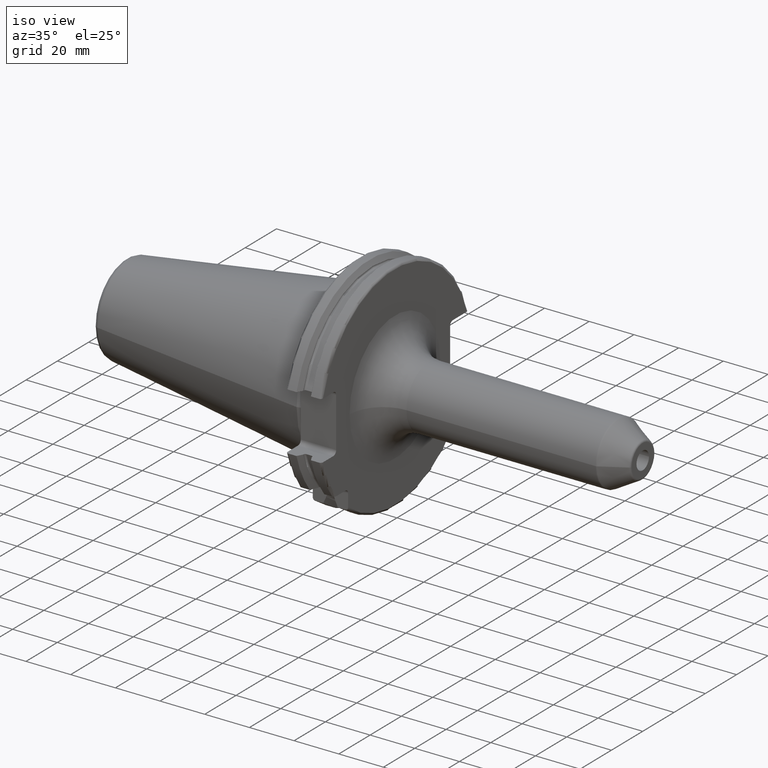
[diagram: clean part render]
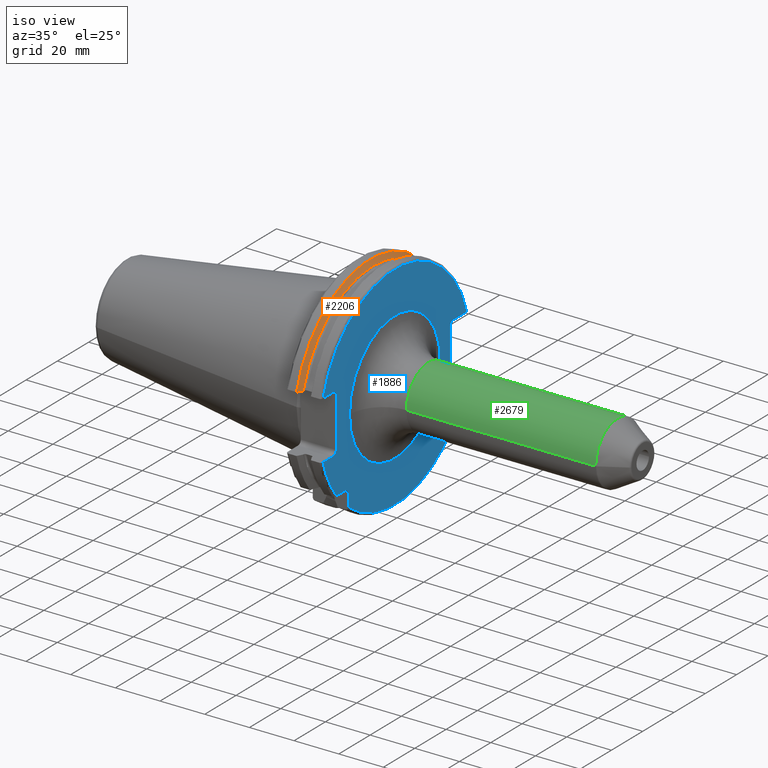
[diagram: same view with three faces highlighted in distinct colors, each labeled with its STEP entity id]
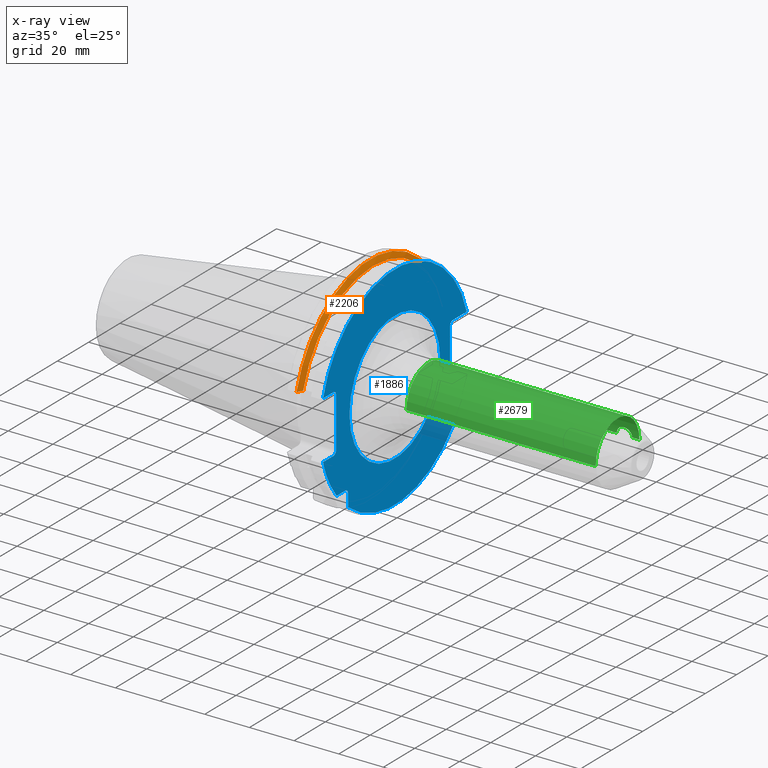
[diagram: x-ray of the same camera — body ghosted, the three highlighted faces saturated]
A machine part, iso view with three faces highlighted in distinct colors.
The next image is the same camera in x-ray (body ghosted, the three faces saturated) — at least one of them is partly hidden behind the body in this view.
Their STEP definitions:

[orange] entity #2206 — the highlighted conical surface has half-angle 60 deg.
#398=CARTESIAN_POINT('',(7.934621614173E0,0.E0,0.E0));
#399=DIRECTION('',(1.E0,0.E0,0.E0));
#400=DIRECTION('',(0.E0,9.643354064066E-1,2.646832521159E-1));
#401=AXIS2_PLACEMENT_3D('',#398,#399,#400);
#425=CARTESIAN_POINT('',(7.934621614173E0,4.699929686974E1,1.29E1));
#426=CARTESIAN_POINT('',(8.085480915039E0,4.672833723043E1,1.29E1));
#427=CARTESIAN_POINT('',(8.384988643814E0,4.619006057422E1,1.29E1));
#428=CARTESIAN_POINT('',(8.827579780447E0,4.539363402665E1,1.29E1));
#429=CARTESIAN_POINT('',(9.118260754177E0,4.486988275438E1,1.29E1));
#430=CARTESIAN_POINT('',(9.2625E0,4.460981716077E1,1.29E1));
#432=CARTESIAN_POINT('',(9.2625E0,-4.460981716077E1,1.29E1));
#433=CARTESIAN_POINT('',(9.118283773553E0,-4.486984125009E1,1.29E1));
#434=CARTESIAN_POINT('',(8.827633549554E0,-4.539353719098E1,1.29E1));
#435=CARTESIAN_POINT('',(8.385043355543E0,-4.618996220278E1,1.29E1));
#436=CARTESIAN_POINT('',(8.085504386120E0,-4.672829507383E1,1.29E1));
#437=CARTESIAN_POINT('',(7.934621614173E0,-4.699929686974E1,1.29E1));
#447=CARTESIAN_POINT('',(9.2625E0,0.E0,0.E0));
#448=DIRECTION('',(1.E0,0.E0,0.E0));
#449=DIRECTION('',(0.E0,9.606411165078E-1,2.777924499957E-1));
#450=AXIS2_PLACEMENT_3D('',#447,#448,#449);
#1460=CARTESIAN_POINT('',(9.2625E0,4.460981716077E1,1.29E1));
#1462=VERTEX_POINT('',#1460);
#1472=CARTESIAN_POINT('',(9.2625E0,-4.460981716077E1,1.29E1));
#1474=VERTEX_POINT('',#1472);
#1498=VERTEX_POINT('',#425);
#1499=VERTEX_POINT('',#437);
#2194=CARTESIAN_POINT('',(8.598560807087E0,0.E0,0.E0));
#2195=DIRECTION('',(-1.E0,0.E0,0.E0));
#2196=DIRECTION('',(0.E0,1.E0,0.E0));
#2197=AXIS2_PLACEMENT_3D('',#2194,#2195,#2196);
#2198=CONICAL_SURFACE('',#2197,4.758752358474E1,6.E1);
#2199=ORIENTED_EDGE('',*,*,#2146,.T.);
#2201=ORIENTED_EDGE('',*,*,#2200,.T.);
#2202=ORIENTED_EDGE('',*,*,#2075,.T.);
#2203=ORIENTED_EDGE('',*,*,#2174,.F.);
#2204=EDGE_LOOP('',(#2199,#2201,#2202,#2203));
#2205=FACE_OUTER_BOUND('',#2204,.F.);
#2206=ADVANCED_FACE('',(#2205),#2198,.T.);
#402=CIRCLE('',#401,4.87375E1);
#431=B_SPLINE_CURVE_WITH_KNOTS('',3,(#425,#426,#427,#428,#429,#430),
.UNSPECIFIED.,.F.,.F.,(4,1,1,4),(0.E0,3.333333333333E-1,6.666666666667E-1,1.E0),
.UNSPECIFIED.);
#438=B_SPLINE_CURVE_WITH_KNOTS('',3,(#432,#433,#434,#435,#436,#437),
.UNSPECIFIED.,.F.,.F.,(4,1,1,4),(0.E0,3.333333333333E-1,6.666666666667E-1,1.E0),
.UNSPECIFIED.);
#451=CIRCLE('',#450,4.643754716948E1);
#2075=EDGE_CURVE('',#1474,#1499,#438,.T.);
#2146=EDGE_CURVE('',#1498,#1462,#431,.T.);
#2174=EDGE_CURVE('',#1498,#1499,#402,.T.);
#2200=EDGE_CURVE('',#1462,#1474,#451,.T.);

[blue] entity #1886 — the highlighted planar face has unit normal (1, 0, 0).
#130=CARTESIAN_POINT('',(1.905E1,3.705E1,1.115E1));
#131=DIRECTION('',(-1.E0,0.E0,0.E0));
#132=DIRECTION('',(0.E0,-1.E0,0.E0));
#133=AXIS2_PLACEMENT_3D('',#130,#131,#132);
#140=DIRECTION('',(0.E0,0.E0,1.E0));
#141=VECTOR('',#140,2.23E1);
#142=CARTESIAN_POINT('',(1.905E1,-3.75E1,-1.115E1));
#143=LINE('',#142,#141);
#144=DIRECTION('',(0.E0,1.E0,0.E0));
#145=VECTOR('',#144,6.711493733886E0);
#146=CARTESIAN_POINT('',(1.905E1,-4.596149373389E1,1.29E1));
#147=LINE('',#146,#145);
#148=DIRECTION('',(0.E0,-1.E0,0.E0));
#149=VECTOR('',#148,8.911493733886E0);
#150=CARTESIAN_POINT('',(1.905E1,4.596149373389E1,1.29E1));
#151=LINE('',#150,#149);
#152=DIRECTION('',(0.E0,0.E0,-1.E0));
#153=VECTOR('',#152,2.23E1);
#154=CARTESIAN_POINT('',(1.905E1,3.53E1,1.115E1));
#155=LINE('',#154,#153);
#156=DIRECTION('',(0.E0,-1.E0,0.E0));
#157=VECTOR('',#156,8.911493733886E0);
#158=CARTESIAN_POINT('',(1.905E1,4.596149373389E1,-1.29E1));
#159=LINE('',#158,#157);
#160=DIRECTION('',(0.E0,0.E0,1.E0));
#161=VECTOR('',#160,5.653810627237E0);
#162=CARTESIAN_POINT('',(1.905E1,-2.985E1,-3.725381062724E1));
#163=LINE('',#162,#161);
#164=DIRECTION('',(0.E0,-1.E0,0.E0));
#165=VECTOR('',#164,5.653810627237E0);
#166=CARTESIAN_POINT('',(1.905E1,-3.16E1,-2.985E1));
#167=LINE('',#166,#165);
#168=DIRECTION('',(0.E0,1.E0,0.E0));
#169=VECTOR('',#168,6.711493733886E0);
#170=CARTESIAN_POINT('',(1.905E1,-4.596149373389E1,-1.29E1));
#171=LINE('',#170,#169);
#172=CARTESIAN_POINT('',(1.905E1,0.E0,0.E0));
#173=DIRECTION('',(1.E0,0.E0,0.E0));
#174=DIRECTION('',(0.E0,-1.E0,0.E0));
#175=AXIS2_PLACEMENT_3D('',#172,#173,#174);
#177=CARTESIAN_POINT('',(1.905E1,0.E0,0.E0));
#178=DIRECTION('',(1.E0,0.E0,0.E0));
#179=DIRECTION('',(0.E0,1.E0,0.E0));
#180=AXIS2_PLACEMENT_3D('',#177,#178,#179);
#190=CARTESIAN_POINT('',(1.905E1,-3.925E1,-1.115E1));
#191=DIRECTION('',(-1.E0,0.E0,0.E0));
#192=DIRECTION('',(0.E0,1.E0,0.E0));
#193=AXIS2_PLACEMENT_3D('',#190,#191,#192);
#213=CARTESIAN_POINT('',(1.905E1,4.596149373389E1,-1.29E1));
#225=CARTESIAN_POINT('',(1.905E1,0.E0,0.E0));
#226=DIRECTION('',(-1.E0,0.E0,0.E0));
#227=DIRECTION('',(0.E0,9.627964123359E-1,-2.702278083268E-1));
#228=AXIS2_PLACEMENT_3D('',#225,#226,#227);
#230=CARTESIAN_POINT('',(1.905E1,-4.596149373389E1,-1.29E1));
#241=CARTESIAN_POINT('',(1.905E1,0.E0,0.E0));
#242=DIRECTION('',(-1.E0,0.E0,0.E0));
#243=DIRECTION('',(0.E0,-7.803888060170E-1,-6.252945797329E-1));
#244=AXIS2_PLACEMENT_3D('',#241,#242,#243);
#255=CARTESIAN_POINT('',(1.905E1,-3.725381062724E1,-2.985E1));
#261=CARTESIAN_POINT('',(1.905E1,3.705E1,-1.115E1));
#262=DIRECTION('',(-1.E0,0.E0,0.E0));
#263=DIRECTION('',(0.E0,0.E0,-1.E0));
#264=AXIS2_PLACEMENT_3D('',#261,#262,#263);
#326=CARTESIAN_POINT('',(1.905E1,-3.925E1,1.115E1));
#327=DIRECTION('',(-1.E0,0.E0,0.E0));
#328=DIRECTION('',(0.E0,0.E0,1.E0));
#329=AXIS2_PLACEMENT_3D('',#326,#327,#328);
#367=CARTESIAN_POINT('',(1.905E1,4.596149373389E1,1.29E1));
#378=CARTESIAN_POINT('',(1.905E1,0.E0,0.E0));
#379=DIRECTION('',(1.E0,0.E0,0.E0));
#380=DIRECTION('',(0.E0,9.627964123359E-1,2.702278083268E-1));
#381=AXIS2_PLACEMENT_3D('',#378,#379,#380);
#392=CARTESIAN_POINT('',(1.905E1,-4.596149373389E1,1.29E1));
#741=CARTESIAN_POINT('',(1.905E1,-3.16E1,-3.16E1));
#742=DIRECTION('',(-1.E0,0.E0,0.E0));
#743=DIRECTION('',(0.E0,0.E0,1.E0));
#744=AXIS2_PLACEMENT_3D('',#741,#742,#743);
#1529=VERTEX_POINT('',#367);
#1530=VERTEX_POINT('',#392);
#1533=VERTEX_POINT('',#213);
#1534=VERTEX_POINT('',#230);
#1553=CARTESIAN_POINT('',(1.905E1,-2.985E1,-3.725381062724E1));
#1554=VERTEX_POINT('',#1553);
#1561=CARTESIAN_POINT('',(1.905E1,-3.75E1,-1.115E1));
#1563=VERTEX_POINT('',#1561);
#1565=CARTESIAN_POINT('',(1.905E1,-3.925E1,-1.29E1));
#1567=VERTEX_POINT('',#1565);
#1569=CARTESIAN_POINT('',(1.905E1,-3.925E1,1.29E1));
#1571=VERTEX_POINT('',#1569);
#1573=CARTESIAN_POINT('',(1.905E1,-3.75E1,1.115E1));
#1575=VERTEX_POINT('',#1573);
#1577=CARTESIAN_POINT('',(1.905E1,3.53E1,1.115E1));
#1579=VERTEX_POINT('',#1577);
#1581=CARTESIAN_POINT('',(1.905E1,3.705E1,1.29E1));
#1583=VERTEX_POINT('',#1581);
#1585=CARTESIAN_POINT('',(1.905E1,3.705E1,-1.29E1));
#1587=VERTEX_POINT('',#1585);
#1589=CARTESIAN_POINT('',(1.905E1,3.53E1,-1.115E1));
#1591=VERTEX_POINT('',#1589);
#1593=CARTESIAN_POINT('',(1.905E1,-3.16E1,-2.985E1));
#1594=CARTESIAN_POINT('',(1.905E1,-2.985E1,-3.16E1));
#1595=VERTEX_POINT('',#1593);
#1596=VERTEX_POINT('',#1594);
#1617=CARTESIAN_POINT('',(1.905E1,-2.9E1,0.E0));
#1618=CARTESIAN_POINT('',(1.905E1,2.9E1,0.E0));
#1619=VERTEX_POINT('',#1617);
#1620=VERTEX_POINT('',#1618);
#1658=VERTEX_POINT('',#255);
#1843=CARTESIAN_POINT('',(1.905E1,0.E0,0.E0));
#1844=DIRECTION('',(1.E0,0.E0,0.E0));
#1845=DIRECTION('',(0.E0,-1.E0,0.E0));
#1846=AXIS2_PLACEMENT_3D('',#1843,#1844,#1845);
#1847=PLANE('',#1846);
#1849=ORIENTED_EDGE('',*,*,#1848,.T.);
#1851=ORIENTED_EDGE('',*,*,#1850,.F.);
#1853=ORIENTED_EDGE('',*,*,#1852,.F.);
#1855=ORIENTED_EDGE('',*,*,#1854,.F.);
#1857=ORIENTED_EDGE('',*,*,#1856,.T.);
#1858=ORIENTED_EDGE('',*,*,#1834,.F.);
#1859=ORIENTED_EDGE('',*,*,#1823,.T.);
#1861=ORIENTED_EDGE('',*,*,#1860,.F.);
#1863=ORIENTED_EDGE('',*,*,#1862,.F.);
#1865=ORIENTED_EDGE('',*,*,#1864,.T.);
#1867=ORIENTED_EDGE('',*,*,#1866,.T.);
#1869=ORIENTED_EDGE('',*,*,#1868,.F.);
#1871=ORIENTED_EDGE('',*,*,#1870,.T.);
#1873=ORIENTED_EDGE('',*,*,#1872,.T.);
#1875=ORIENTED_EDGE('',*,*,#1874,.T.);
#1877=ORIENTED_EDGE('',*,*,#1876,.F.);
#1878=EDGE_LOOP('',(#1849,#1851,#1853,#1855,#1857,#1858,#1859,#1861,#1863,#1865,
#1867,#1869,#1871,#1873,#1875,#1877));
#1879=FACE_OUTER_BOUND('',#1878,.F.);
#1881=ORIENTED_EDGE('',*,*,#1880,.T.);
#1883=ORIENTED_EDGE('',*,*,#1882,.T.);
#1884=EDGE_LOOP('',(#1881,#1883));
#1885=FACE_BOUND('',#1884,.F.);
#1886=ADVANCED_FACE('',(#1879,#1885),#1847,.T.);
#134=CIRCLE('',#133,1.75E0);
#176=CIRCLE('',#175,2.9E1);
#181=CIRCLE('',#180,2.9E1);
#194=CIRCLE('',#193,1.75E0);
#229=CIRCLE('',#228,4.77375E1);
#245=CIRCLE('',#244,4.77375E1);
#265=CIRCLE('',#264,1.75E0);
#330=CIRCLE('',#329,1.75E0);
#382=CIRCLE('',#381,4.77375E1);
#745=CIRCLE('',#744,1.75E0);
#1823=EDGE_CURVE('',#1579,#1591,#155,.T.);
#1834=EDGE_CURVE('',#1579,#1583,#134,.T.);
#1848=EDGE_CURVE('',#1563,#1575,#143,.T.);
#1850=EDGE_CURVE('',#1571,#1575,#330,.T.);
#1852=EDGE_CURVE('',#1530,#1571,#147,.T.);
#1854=EDGE_CURVE('',#1529,#1530,#382,.T.);
#1856=EDGE_CURVE('',#1529,#1583,#151,.T.);
#1860=EDGE_CURVE('',#1587,#1591,#265,.T.);
#1862=EDGE_CURVE('',#1533,#1587,#159,.T.);
#1864=EDGE_CURVE('',#1533,#1554,#229,.T.);
#1866=EDGE_CURVE('',#1554,#1596,#163,.T.);
#1868=EDGE_CURVE('',#1595,#1596,#745,.T.);
#1870=EDGE_CURVE('',#1595,#1658,#167,.T.);
#1872=EDGE_CURVE('',#1658,#1534,#245,.T.);
#1874=EDGE_CURVE('',#1534,#1567,#171,.T.);
#1876=EDGE_CURVE('',#1563,#1567,#194,.T.);
#1880=EDGE_CURVE('',#1619,#1620,#176,.T.);
#1882=EDGE_CURVE('',#1620,#1619,#181,.T.);

[green] entity #2679 — the highlighted cylindrical surface (partial cylindrical patch) has radius 14 mm, axis along (1, 0, 0).
#962=CARTESIAN_POINT('',(1.154E2,1.4E1,0.E0));
#963=CARTESIAN_POINT('',(1.154E2,1.4E1,2.081374813703E-1));
#964=CARTESIAN_POINT('',(1.153626585357E2,1.399085430979E1,6.186711031883E-1));
#965=CARTESIAN_POINT('',(1.151912052909E2,1.395020858629E1,1.228646730995E0));
#966=CARTESIAN_POINT('',(1.149111642997E2,1.388811754297E1,1.794090379882E0));
#967=CARTESIAN_POINT('',(1.145277172645E2,1.381198922940E1,2.303217471823E0));
#968=CARTESIAN_POINT('',(1.140594832457E2,1.373305213711E1,2.730137568107E0));
#969=CARTESIAN_POINT('',(1.135154477975E2,1.366129578411E1,3.065327712898E0));
#970=CARTESIAN_POINT('',(1.129312723503E2,1.360827949145E1,3.290001103972E0));
#971=CARTESIAN_POINT('',(1.123104165474E2,1.357965243694E1,3.404922900318E0));
#972=CARTESIAN_POINT('',(1.116904741820E2,1.357962772092E1,3.405023463791E0));
#973=CARTESIAN_POINT('',(1.110694020546E2,1.360823656254E1,3.290169142880E0));
#974=CARTESIAN_POINT('',(1.104855471944E2,1.366118083835E1,3.065850472156E0));
#975=CARTESIAN_POINT('',(1.099408072259E2,1.373300901104E1,2.730326230938E0));
#976=CARTESIAN_POINT('',(1.094733183414E2,1.381180095593E1,2.304346531448E0));
#977=CARTESIAN_POINT('',(1.090890154045E2,1.388807443091E1,1.794447795720E0));
#978=CARTESIAN_POINT('',(1.088090885651E2,1.395014245106E1,1.229408617805E0));
#979=CARTESIAN_POINT('',(1.086372962467E2,1.399086394457E1,6.186687724525E-1));
#980=CARTESIAN_POINT('',(1.086E2,1.4E1,2.081242316330E-1));
#981=CARTESIAN_POINT('',(1.086E2,1.4E1,0.E0));
#983=CARTESIAN_POINT('',(1.187320508076E2,0.E0,0.E0));
#984=DIRECTION('',(-1.E0,0.E0,0.E0));
#985=DIRECTION('',(0.E0,-1.E0,0.E0));
#986=AXIS2_PLACEMENT_3D('',#983,#984,#985);
#988=CARTESIAN_POINT('',(3.405E1,0.E0,0.E0));
#989=DIRECTION('',(1.E0,0.E0,0.E0));
#990=DIRECTION('',(0.E0,1.E0,0.E0));
#991=AXIS2_PLACEMENT_3D('',#988,#989,#990);
#1140=DIRECTION('',(-1.E0,0.E0,2.113765791062E-14));
#1141=VECTOR('',#1140,7.455E1);
#1142=CARTESIAN_POINT('',(1.086E2,1.4E1,0.E0));
#1143=LINE('',#1142,#1141);
#1149=DIRECTION('',(-1.E0,0.E0,-3.220332404966E-13));
#1150=VECTOR('',#1149,8.468205080757E1);
#1151=CARTESIAN_POINT('',(1.187320508076E2,-1.4E1,2.569027343542E-11));
#1152=LINE('',#1151,#1150);
#1158=DIRECTION('',(-1.E0,0.E0,7.712301580324E-12));
#1159=VECTOR('',#1158,3.332050807569E0);
#1160=CARTESIAN_POINT('',(1.187320508076E2,1.4E1,-2.569691998673E-11));
#1161=LINE('',#1160,#1159);
#1608=CARTESIAN_POINT('',(1.154E2,1.4E1,0.E0));
#1610=VERTEX_POINT('',#1608);
#1612=CARTESIAN_POINT('',(1.086E2,1.4E1,0.E0));
#1614=VERTEX_POINT('',#1612);
#1621=CARTESIAN_POINT('',(3.405E1,-1.4E1,0.E0));
#1622=CARTESIAN_POINT('',(3.405E1,1.4E1,0.E0));
#1623=VERTEX_POINT('',#1621);
#1624=VERTEX_POINT('',#1622);
#1625=CARTESIAN_POINT('',(1.187320508076E2,1.4E1,0.E0));
#1626=CARTESIAN_POINT('',(1.187320508076E2,-1.4E1,0.E0));
#1627=VERTEX_POINT('',#1625);
#1628=VERTEX_POINT('',#1626);
#2661=CARTESIAN_POINT('',(1.35025E1,0.E0,0.E0));
#2662=DIRECTION('',(1.E0,0.E0,0.E0));
#2663=DIRECTION('',(0.E0,-1.E0,0.E0));
#2664=AXIS2_PLACEMENT_3D('',#2661,#2662,#2663);
#2665=CYLINDRICAL_SURFACE('',#2664,1.4E1);
#2667=ORIENTED_EDGE('',*,*,#2666,.F.);
#2669=ORIENTED_EDGE('',*,*,#2668,.F.);
#2671=ORIENTED_EDGE('',*,*,#2670,.F.);
#2673=ORIENTED_EDGE('',*,*,#2672,.T.);
#2674=ORIENTED_EDGE('',*,*,#2655,.F.);
#2676=ORIENTED_EDGE('',*,*,#2675,.F.);
#2677=EDGE_LOOP('',(#2667,#2669,#2671,#2673,#2674,#2676));
#2678=FACE_OUTER_BOUND('',#2677,.F.);
#2679=ADVANCED_FACE('',(#2678),#2665,.T.);
#982=B_SPLINE_CURVE_WITH_KNOTS('',3,(#962,#963,#964,#965,#966,#967,#968,#969,
#970,#971,#972,#973,#974,#975,#976,#977,#978,#979,#980,#981),.UNSPECIFIED.,.F.,
.F.,(4,1,1,1,1,1,1,1,1,1,1,1,1,1,1,1,1,4),(0.E0,5.882352941176E-2,
1.176470588235E-1,1.764705882353E-1,2.352941176471E-1,2.941176470588E-1,
3.529411764706E-1,4.117647058824E-1,4.705882352941E-1,5.294117647059E-1,
5.882352941176E-1,6.470588235294E-1,7.058823529412E-1,7.647058823529E-1,
8.235294117647E-1,8.823529411765E-1,9.411764705882E-1,1.E0),.UNSPECIFIED.);
#987=CIRCLE('',#986,1.4E1);
#992=CIRCLE('',#991,1.4E1);
#2655=EDGE_CURVE('',#1624,#1623,#992,.T.);
#2666=EDGE_CURVE('',#1610,#1614,#982,.T.);
#2668=EDGE_CURVE('',#1627,#1610,#1161,.T.);
#2670=EDGE_CURVE('',#1628,#1627,#987,.T.);
#2672=EDGE_CURVE('',#1628,#1623,#1152,.T.);
#2675=EDGE_CURVE('',#1614,#1624,#1143,.T.);